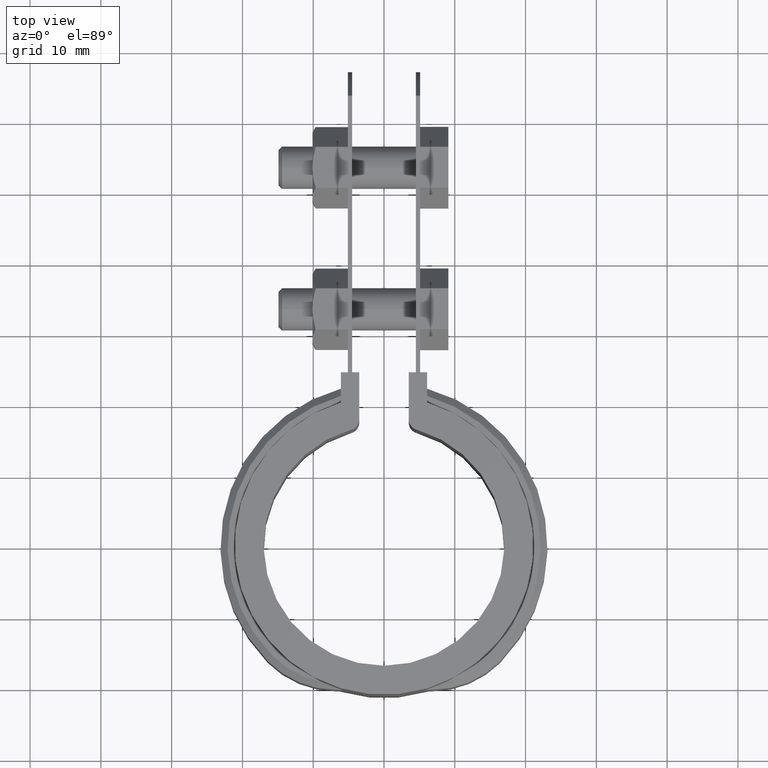
[diagram: clean part render]
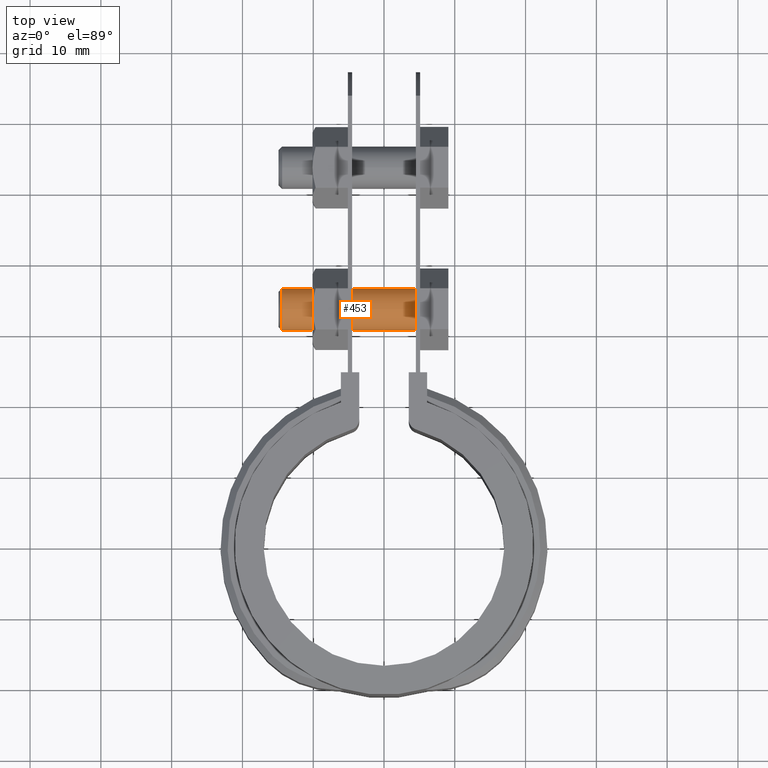
[diagram: same view with one face highlighted and labeled with its STEP entity id]
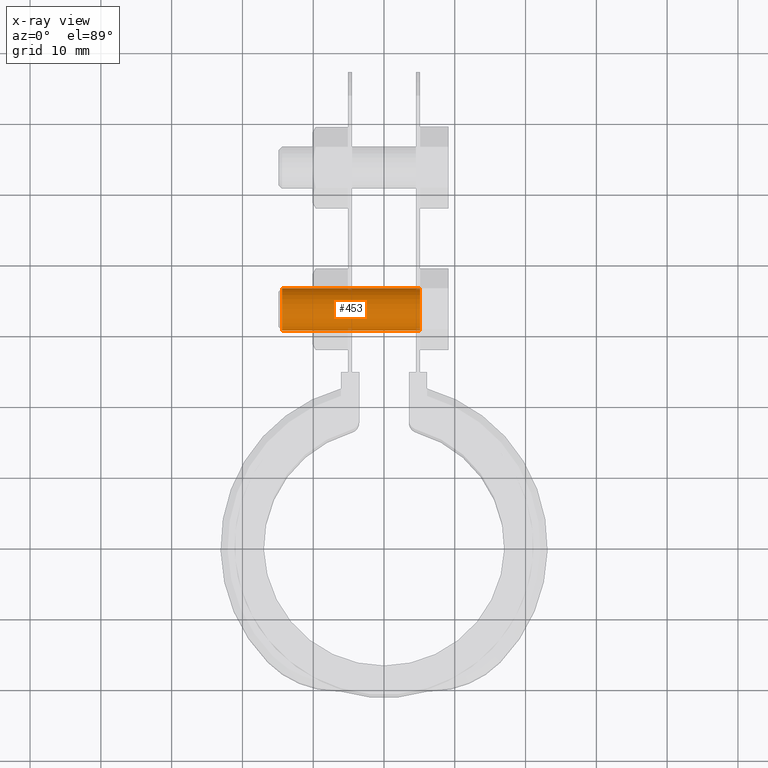
[diagram: x-ray of the same camera — body ghosted, the highlighted face saturated]
A machine part, top view. The second image highlights one B-rep face of the part: STEP entity #453.
The next image is the same camera in x-ray: the body ghosted, the highlighted face saturated — about 1% of this face is hidden behind the body in this view.
In plain terms, the highlighted cylindrical surface (bore or boss wall) has radius 3 mm, axis along (1, 0, 0).
Its self-contained STEP definition (entity closure, byte-faithful):
#453 = ADVANCED_FACE( '', ( #802, #803 ), #804, .T. );
#802 = FACE_OUTER_BOUND( '', #1600, .T. );
#803 = FACE_OUTER_BOUND( '', #1601, .T. );
#804 = CYLINDRICAL_SURFACE( '', #1602, 3.00000000000000 );
#1600 = EDGE_LOOP( '', ( #3579 ) );
#1601 = EDGE_LOOP( '', ( #3580 ) );
#1602 = AXIS2_PLACEMENT_3D( '', #3581, #3582, #3583 );
#3579 = ORIENTED_EDGE( '', *, *, #4369, .T. );
#3580 = ORIENTED_EDGE( '', *, *, #4363, .F. );
#3581 = CARTESIAN_POINT( '', ( 13.5487843911358, 33.6043584449263, -12.5000000000000 ) );
#3582 = DIRECTION( '', ( 1.00000000000000, 0.000000000000000, 0.000000000000000 ) );
#3583 = DIRECTION( '', ( 0.000000000000000, 0.000000000000000, 1.00000000000000 ) );
#4363 = EDGE_CURVE( '', #5130, #5130, #5131, .F. );
#4369 = EDGE_CURVE( '', #5140, #5140, #5141, .T. );
#5130 = VERTEX_POINT( '', #7674 );
#5131 = CIRCLE( '', #7675, 3.00000000000000 );
#5140 = VERTEX_POINT( '', #7689 );
#5141 = CIRCLE( '', #7690, 3.00000000000000 );
#7674 = CARTESIAN_POINT( '', ( 5.10000000000000, 33.6043584449263, -9.50000000000000 ) );
#7675 = AXIS2_PLACEMENT_3D( '', #8511, #8512, #8513 );
#7689 = CARTESIAN_POINT( '', ( -14.4000000000000, 33.6043584449263, -15.5000000000000 ) );
#7690 = AXIS2_PLACEMENT_3D( '', #8519, #8520, #8521 );
#8511 = CARTESIAN_POINT( '', ( 5.10000000000000, 33.6043584449263, -12.5000000000000 ) );
#8512 = DIRECTION( '', ( -1.00000000000000, 0.000000000000000, 0.000000000000000 ) );
#8513 = DIRECTION( '', ( 0.000000000000000, 0.000000000000000, 1.00000000000000 ) );
#8519 = CARTESIAN_POINT( '', ( -14.4000000000000, 33.6043584449263, -12.5000000000000 ) );
#8520 = DIRECTION( '', ( 1.00000000000000, 0.000000000000000, 0.000000000000000 ) );
#8521 = DIRECTION( '', ( 0.000000000000000, 0.000000000000000, -1.00000000000000 ) );